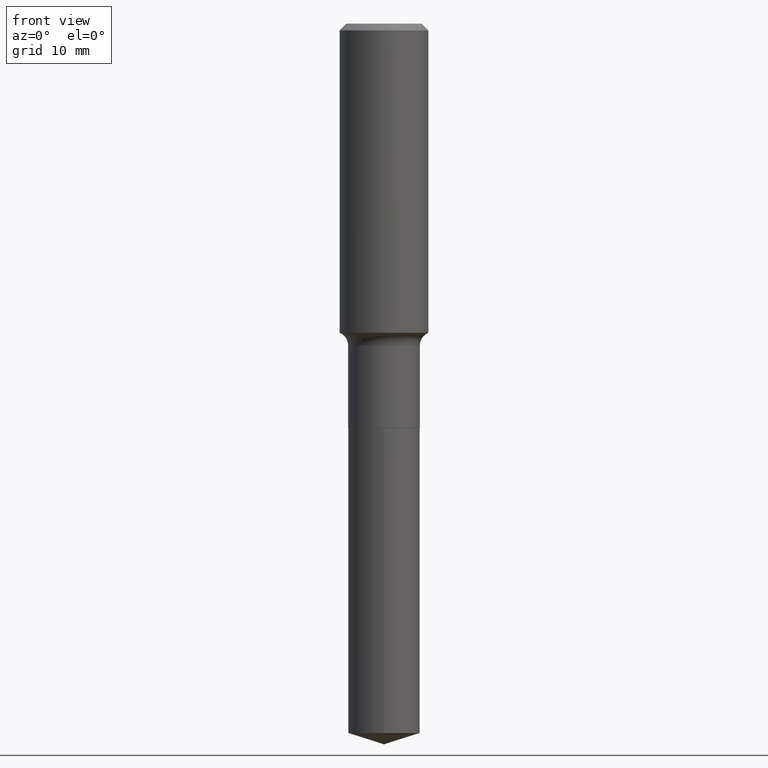
[diagram: clean part render]
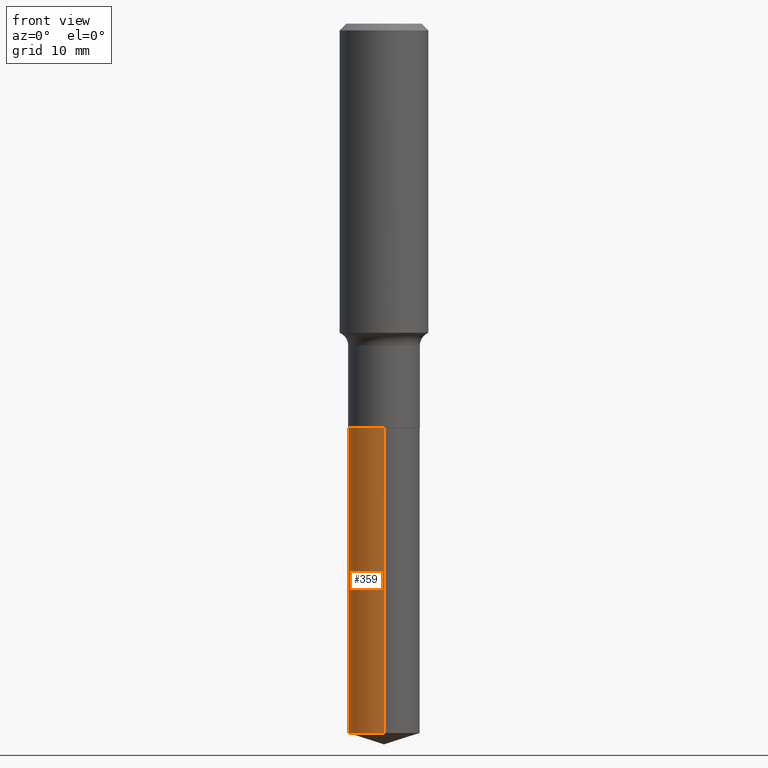
[diagram: same view with one face highlighted and labeled with its STEP entity id]
A machine part, front view. The second image highlights one B-rep face of the part: STEP entity #359.
In plain terms, the highlighted cylindrical surface (edge-blend (fillet) strip) has radius 5.1308 mm, axis along (-0, 0, 1).
Its self-contained STEP definition (entity closure, byte-faithful):
#8 = DIRECTION ( 'NONE',  ( -6.982962677686266711E-15, -1.000000000000000000, 2.704799993726993161E-15 ) ) ;
#21 = ORIENTED_EDGE ( 'NONE', *, *, #371, .F. ) ;
#23 = CARTESIAN_POINT ( 'NONE',  ( 5.573223409295926376E-29, -7.957085971223528811E-15, -2.279000000000000359 ) ) ;
#33 = VERTEX_POINT ( 'NONE', #266 ) ;
#57 = EDGE_CURVE ( 'NONE', #358, #33, #93, .T. ) ;
#60 = DIRECTION ( 'NONE',  ( -6.982962677686266711E-15, -1.000000000000000000, 4.057199990590489741E-15 ) ) ;
#82 = DIRECTION ( 'NONE',  ( -2.445548946158121065E-29, 3.491366573840548016E-15, 1.000000000000000000 ) ) ;
#92 = ORIENTED_EDGE ( 'NONE', *, *, #251, .F. ) ;
#93 = CIRCLE ( 'NONE', #224, 0.2020000000000000129 ) ;
#95 = VECTOR ( 'NONE', #218, 39.37007874015748143 ) ;
#110 = VECTOR ( 'NONE', #213, 39.37007874015748143 ) ;
#126 = FACE_OUTER_BOUND ( 'NONE', #302, .T. ) ;
#130 = DIRECTION ( 'NONE',  ( -2.445548946158121065E-29, 3.491366573840548016E-15, 1.000000000000000000 ) ) ;
#134 = LINE ( 'NONE', #380, #95 ) ;
#213 = DIRECTION ( 'NONE',  ( -2.445548946158121065E-29, 3.491366573840547621E-15, 1.000000000000000000 ) ) ;
#218 = DIRECTION ( 'NONE',  ( -2.445548946158121065E-29, 3.491366573840547621E-15, 1.000000000000000000 ) ) ;
#224 = AXIS2_PLACEMENT_3D ( 'NONE', #230, #456, #8 ) ;
#230 = CARTESIAN_POINT ( 'NONE',  ( 9.779102073353615389E-29, -1.396157187791072146E-14, -3.998809644646446504 ) ) ;
#244 = ORIENTED_EDGE ( 'NONE', *, *, #57, .T. ) ;
#251 = EDGE_CURVE ( 'NONE', #452, #259, #319, .T. ) ;
#259 = VERTEX_POINT ( 'NONE', #389 ) ;
#266 = CARTESIAN_POINT ( 'NONE',  ( -1.410558460892528341E-15, -0.2020000000000140572, -3.998809644646445616 ) ) ;
#284 = CARTESIAN_POINT ( 'NONE',  ( 5.573223409295926376E-29, -7.957085971223528811E-15, -2.279000000000000359 ) ) ;
#290 = LINE ( 'NONE', #400, #110 ) ;
#302 = EDGE_LOOP ( 'NONE', ( #21, #244, #408, #92 ) ) ;
#319 = CIRCLE ( 'NONE', #384, 0.2020000000000000129 ) ;
#335 = AXIS2_PLACEMENT_3D ( 'NONE', #23, #130, #60 ) ;
#358 = VERTEX_POINT ( 'NONE', #363 ) ;
#359 = ADVANCED_FACE ( 'NONE', ( #126 ), #484, .T. ) ;
#363 = CARTESIAN_POINT ( 'NONE',  ( 1.435296326235500286E-15, 0.2019999999999860518, -3.998809644646446948 ) ) ;
#371 = EDGE_CURVE ( 'NONE', #358, #452, #290, .T. ) ;
#380 = CARTESIAN_POINT ( 'NONE',  ( -1.410558460892570150E-15, -0.2020000000000079787, -2.278999999999999471 ) ) ;
#384 = AXIS2_PLACEMENT_3D ( 'NONE', #284, #82, #470 ) ;
#389 = CARTESIAN_POINT ( 'NONE',  ( -1.410558460892570150E-15, -0.2020000000000079787, -2.278999999999999471 ) ) ;
#393 = EDGE_CURVE ( 'NONE', #33, #259, #134, .T. ) ;
#400 = CARTESIAN_POINT ( 'NONE',  ( 1.435296326235458082E-15, 0.2019999999999920748, -2.279000000000000803 ) ) ;
#408 = ORIENTED_EDGE ( 'NONE', *, *, #393, .T. ) ;
#442 = CARTESIAN_POINT ( 'NONE',  ( 1.435296326235500286E-15, 0.2019999999999920748, -2.279000000000000803 ) ) ;
#452 = VERTEX_POINT ( 'NONE', #442 ) ;
#456 = DIRECTION ( 'NONE',  ( -2.445548946158121065E-29, 3.491366573840548016E-15, 1.000000000000000000 ) ) ;
#470 = DIRECTION ( 'NONE',  ( -6.982962677686266711E-15, -1.000000000000000000, 4.057199990590489741E-15 ) ) ;
#484 = CYLINDRICAL_SURFACE ( 'NONE', #335, 0.2020000000000000129 ) ;